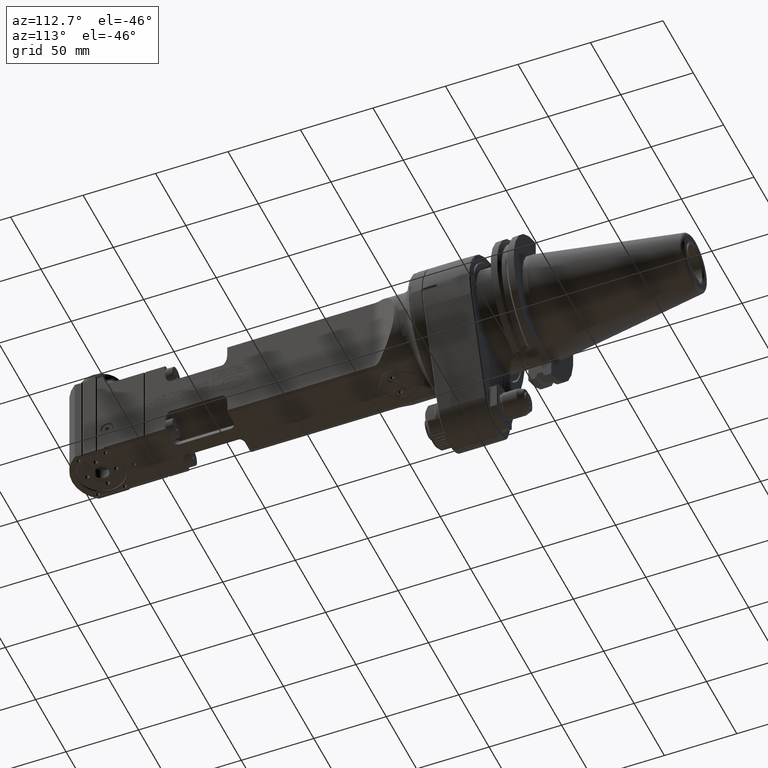
[diagram: clean part render]
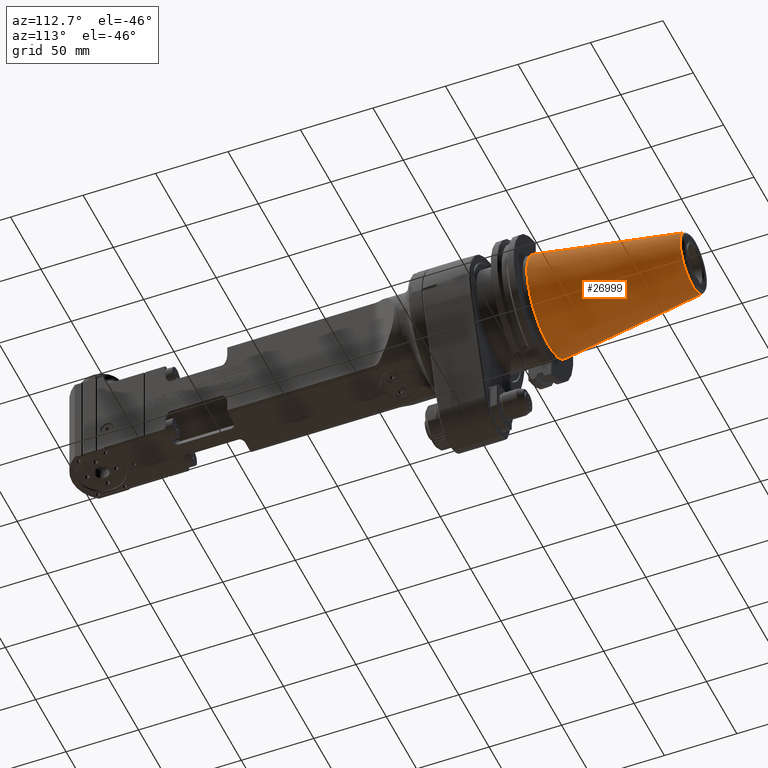
[diagram: same view with one face highlighted and labeled with its STEP entity id]
A machine part, auxiliary view. The second image highlights one B-rep face of the part: STEP entity #26999.
In plain terms, the highlighted conical surface has half-angle 8.3 deg.
Its self-contained STEP definition (entity closure, byte-faithful):
#328=CONICAL_SURFACE('',#28963,27.65552420652,0.144862327915529);
#1048=CIRCLE('',#28960,20.38604841304);
#1050=CIRCLE('',#28962,20.38604841304);
#1051=CIRCLE('',#28964,34.925);
#2618=FACE_OUTER_BOUND('',#4205,.T.);
#4205=EDGE_LOOP('',(#19666,#19667,#19668,#19669,#19670));
#6130=LINE('',#41693,#8765);
#8765=VECTOR('',#32976,27.65552420652);
#11450=VERTEX_POINT('',#41685);
#11451=VERTEX_POINT('',#41686);
#11452=VERTEX_POINT('',#41691);
#14490=EDGE_CURVE('',#11450,#11451,#1048,.T.);
#14492=EDGE_CURVE('',#11451,#11450,#1050,.T.);
#14493=EDGE_CURVE('',#11452,#11452,#1051,.T.);
#14494=EDGE_CURVE('',#11452,#11451,#6130,.T.);
#19666=ORIENTED_EDGE('',*,*,#14493,.F.);
#19667=ORIENTED_EDGE('',*,*,#14494,.T.);
#19668=ORIENTED_EDGE('',*,*,#14492,.T.);
#19669=ORIENTED_EDGE('',*,*,#14490,.T.);
#19670=ORIENTED_EDGE('',*,*,#14494,.F.);
#26999=ADVANCED_FACE('',(#2618),#328,.T.);
#28960=AXIS2_PLACEMENT_3D('',#41687,#32966,#32967);
#28962=AXIS2_PLACEMENT_3D('',#41689,#32970,#32971);
#28963=AXIS2_PLACEMENT_3D('',#41690,#32972,#32973);
#28964=AXIS2_PLACEMENT_3D('',#41692,#32974,#32975);
#32966=DIRECTION('center_axis',(0.,-1.,0.));
#32967=DIRECTION('ref_axis',(0.00108059556212205,0.,0.999999416156445));
#32970=DIRECTION('center_axis',(0.,-1.,0.));
#32971=DIRECTION('ref_axis',(0.00108059556212205,0.,0.999999416156445));
#32972=DIRECTION('center_axis',(0.,-1.,0.));
#32973=DIRECTION('ref_axis',(0.,0.,1.));
#32974=DIRECTION('center_axis',(0.,-1.,0.));
#32975=DIRECTION('ref_axis',(0.,0.,-1.));
#32976=DIRECTION('',(-1.76785359492914E-17,0.989525789068969,0.144356201000973));
#41685=CARTESIAN_POINT('',(0.0220290734443338,167.6608905025,20.386036510777));
#41686=CARTESIAN_POINT('',(2.49657089362968E-15,167.660890502501,-20.3860484130436));
#41687=CARTESIAN_POINT('Origin',(0.,167.6608905025,-1.224645799147E-14));
#41689=CARTESIAN_POINT('Origin',(0.,167.6608905025,-1.224645799147E-14));
#41690=CARTESIAN_POINT('Origin',(0.,117.83044525125,-1.224645799147E-14));
#41691=CARTESIAN_POINT('',(0.,68.,-34.925));
#41692=CARTESIAN_POINT('Origin',(0.,68.,-1.224645799147E-14));
#41693=CARTESIAN_POINT('',(3.38682491982569E-15,117.83044525125,-27.65552420652));